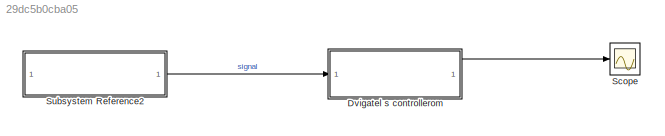
MODEL slx_29dc5b0cba05
KIND model
CONFIG AbsTol = auto
CONFIG EnableMultiTasking = off
CONFIG FixedStep = auto
CONFIG MaxStep = auto
CONFIG MinStep = auto
CONFIG RelTol = 1e-3
CONFIG SampleTimeConstraint = Unconstrained
CONFIG SolverName = VariableStepAuto
CONFIG StartTime = 0.0
CONFIG StopTime = 10.0
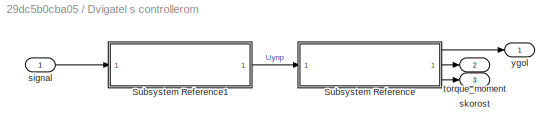
BLOCK [SubSystem] Dvigatel s controllerom
BLOCK [SubSystem] Dvigatel s controllerom/Subsystem Reference
  Cm = 1.3
  Cw = 3.15
  J = 7e-6
  L = 0.0015
  Lob = 0.013
  R = 8
  ReferencedSubsystem = dvigatel
  b = 0.001
BLOCK [SubSystem] Dvigatel s controllerom/Subsystem Reference1
  ReferencedSubsystem = connector
  k1 = 5
  k2 = 8
  k3 = 12
BLOCK [Inport] Dvigatel s controllerom/signal
BLOCK [Outport] Dvigatel s controllerom/skorost
  Port = 3
BLOCK [Outport] Dvigatel s controllerom/torque_moment
  Port = 2
BLOCK [Outport] Dvigatel s controllerom/ygol
BLOCK [Scope] Scope
  Floating = off
  NumInputPorts = 1
  ScopeSpecificationString = Simulink.scopes.TimeScopeBlockCfg('CurrentConfiguration', extmgr.ConfigurationSet(extmgr.Configuration('Core','General UI',true),extmgr.Configuration('Core','Source UI',true),extmgr.Configuration('Sources','WiredSimulink',true,'DataLoggingVariableName','ScopeData3'),extmgr.Configuration('Visuals','Time Domain',true,'SerializedDisplays',{struct('MinYLimReal','-0.0164','MaxYLimReal','0.1476','YLabel...<+1376ch>
BLOCK [SubSystem] Subsystem Reference2
  ReferencedSubsystem = tester
  test = 3
LINE Dvigatel s controllerom/Subsystem Reference1:1 -> Dvigatel s controllerom/Subsystem Reference:1
LINE Dvigatel s controllerom/Subsystem Reference:1 -> Dvigatel s controllerom/ygol:1
LINE Dvigatel s controllerom/Subsystem Reference:2 -> Dvigatel s controllerom/torque_moment:1
LINE Dvigatel s controllerom/Subsystem Reference:3 -> Dvigatel s controllerom/skorost:1
LINE Dvigatel s controllerom/signal:1 -> Dvigatel s controllerom/Subsystem Reference1:1
LINE Dvigatel s controllerom:1 -> Scope:1
LINE Subsystem Reference2:1 -> Dvigatel s controllerom:1
